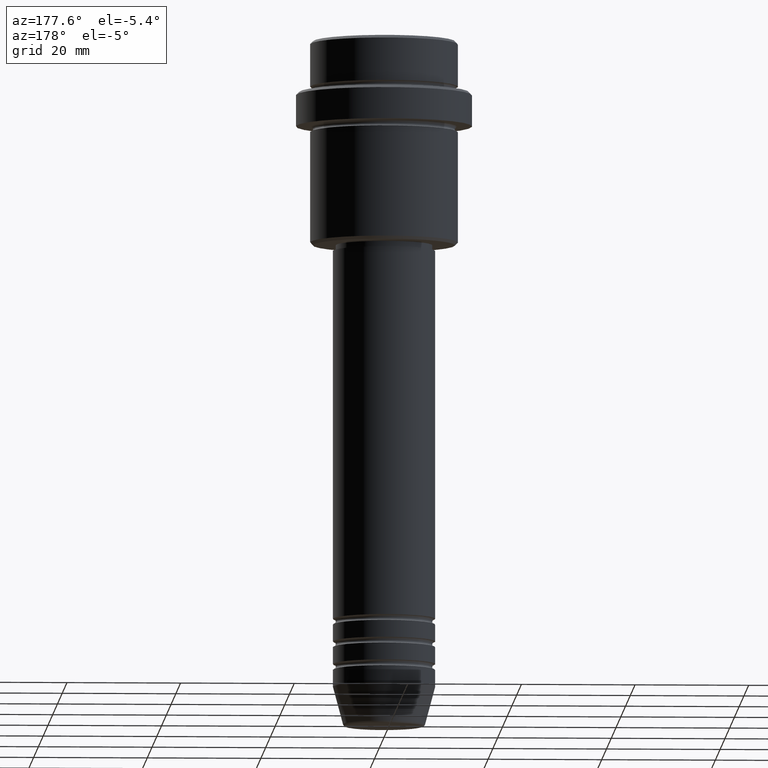
[diagram: clean part render]
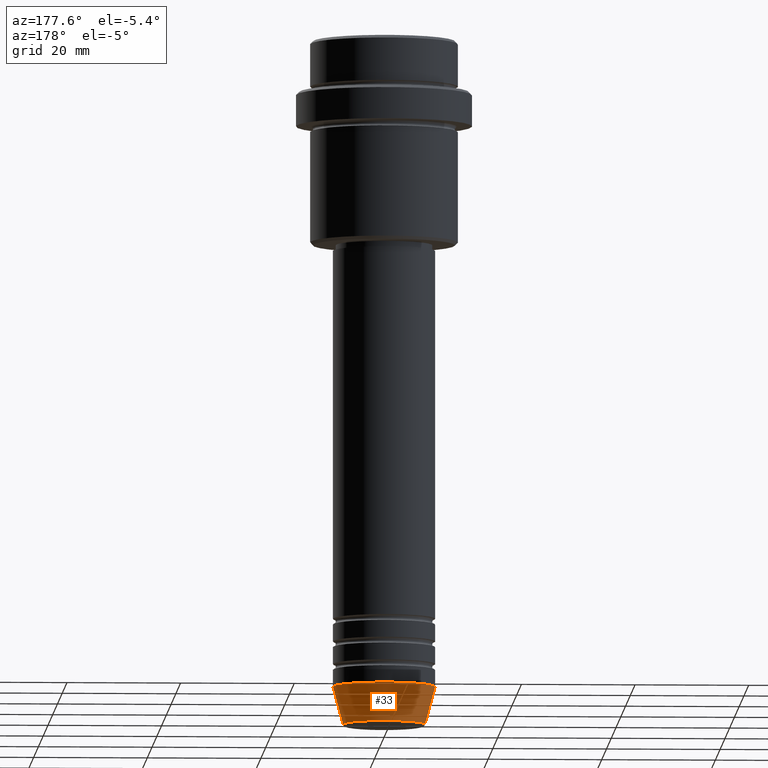
[diagram: same view with one face highlighted and labeled with its STEP entity id]
A machine part, auxiliary view. The second image highlights one B-rep face of the part: STEP entity #33.
In plain terms, the highlighted conical surface has half-angle 15 deg.
Its self-contained STEP definition (entity closure, byte-faithful):
#33 = ADVANCED_FACE ( 'NONE', ( #1230 ), #381, .T. ) ;
#38 = LINE ( 'NONE', #170, #1066 ) ;
#50 = CARTESIAN_POINT ( 'NONE',  ( 0.000000000000000000, 0.000000000000000000, -114.0000000000000000 ) ) ;
#114 = EDGE_CURVE ( 'NONE', #861, #143, #651, .T. ) ;
#119 = CARTESIAN_POINT ( 'NONE',  ( 7.223655072137193045, 0.000000000000000000, -120.6294095225512422 ) ) ;
#129 = CARTESIAN_POINT ( 'NONE',  ( 0.000000000000000000, 0.000000000000000000, -114.0000000000000000 ) ) ;
#143 = VERTEX_POINT ( 'NONE', #1052 ) ;
#152 = CARTESIAN_POINT ( 'NONE',  ( 9.000000000000000000, 0.000000000000000000, -114.0000000000000000 ) ) ;
#170 = CARTESIAN_POINT ( 'NONE',  ( -9.000000000000000000, 1.102182119232617714E-15, -114.0000000000000000 ) ) ;
#180 = VERTEX_POINT ( 'NONE', #1164 ) ;
#253 = VECTOR ( 'NONE', #814, 1000.000000000000000 ) ;
#272 = DIRECTION ( 'NONE',  ( 1.000000000000000000, 0.000000000000000000, 0.000000000000000000 ) ) ;
#288 = DIRECTION ( 'NONE',  ( -0.000000000000000000, -0.000000000000000000, 1.000000000000000000 ) ) ;
#367 = LINE ( 'NONE', #152, #253 ) ;
#381 = CONICAL_SURFACE ( 'NONE', #737, 9.000000000000000000, 0.2617993877991500740 ) ;
#435 = DIRECTION ( 'NONE',  ( 1.000000000000000000, 0.000000000000000000, 0.000000000000000000 ) ) ;
#451 = AXIS2_PLACEMENT_3D ( 'NONE', #1169, #288, #511 ) ;
#452 = CARTESIAN_POINT ( 'NONE',  ( -9.000000000000000000, 1.102182119232617714E-15, -114.0000000000000000 ) ) ;
#511 = DIRECTION ( 'NONE',  ( 1.000000000000000000, 0.000000000000000000, 0.000000000000000000 ) ) ;
#638 = ORIENTED_EDGE ( 'NONE', *, *, #1289, .F. ) ;
#651 = CIRCLE ( 'NONE', #451, 7.223655072137193045 ) ;
#673 = ORIENTED_EDGE ( 'NONE', *, *, #114, .T. ) ;
#737 = AXIS2_PLACEMENT_3D ( 'NONE', #50, #1012, #272 ) ;
#811 = ORIENTED_EDGE ( 'NONE', *, *, #1142, .F. ) ;
#814 = DIRECTION ( 'NONE',  ( 0.2588190451025213501, 0.000000000000000000, 0.9659258262890680902 ) ) ;
#861 = VERTEX_POINT ( 'NONE', #119 ) ;
#888 = DIRECTION ( 'NONE',  ( -0.000000000000000000, -0.000000000000000000, 1.000000000000000000 ) ) ;
#894 = EDGE_LOOP ( 'NONE', ( #673, #1219, #811, #638 ) ) ;
#1000 = AXIS2_PLACEMENT_3D ( 'NONE', #129, #888, #435 ) ;
#1012 = DIRECTION ( 'NONE',  ( -0.000000000000000000, -0.000000000000000000, 1.000000000000000000 ) ) ;
#1052 = CARTESIAN_POINT ( 'NONE',  ( -7.223655072137193045, 9.934123627281767082E-16, -120.6294095225512422 ) ) ;
#1066 = VECTOR ( 'NONE', #1247, 1000.000000000000000 ) ;
#1142 = EDGE_CURVE ( 'NONE', #180, #1253, #1316, .T. ) ;
#1164 = CARTESIAN_POINT ( 'NONE',  ( 9.000000000000000000, 0.000000000000000000, -114.0000000000000000 ) ) ;
#1169 = CARTESIAN_POINT ( 'NONE',  ( 0.000000000000000000, 0.000000000000000000, -120.6294095225512422 ) ) ;
#1219 = ORIENTED_EDGE ( 'NONE', *, *, #1301, .T. ) ;
#1230 = FACE_OUTER_BOUND ( 'NONE', #894, .T. ) ;
#1247 = DIRECTION ( 'NONE',  ( -0.2588190451025213501, 3.169619151431772337E-17, 0.9659258262890680902 ) ) ;
#1253 = VERTEX_POINT ( 'NONE', #452 ) ;
#1289 = EDGE_CURVE ( 'NONE', #861, #180, #367, .T. ) ;
#1301 = EDGE_CURVE ( 'NONE', #143, #1253, #38, .T. ) ;
#1316 = CIRCLE ( 'NONE', #1000, 9.000000000000000000 ) ;